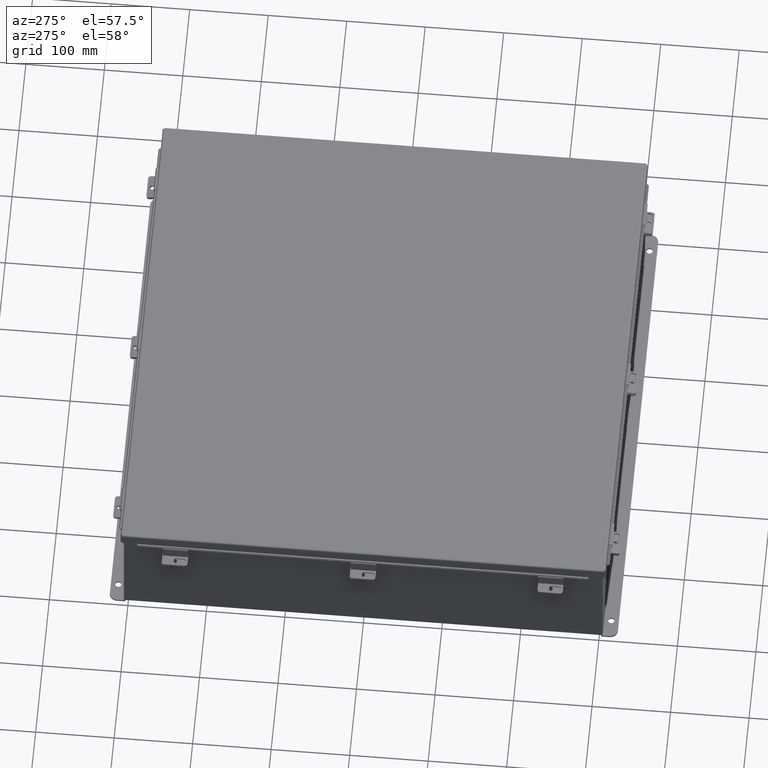
[diagram: clean part render]
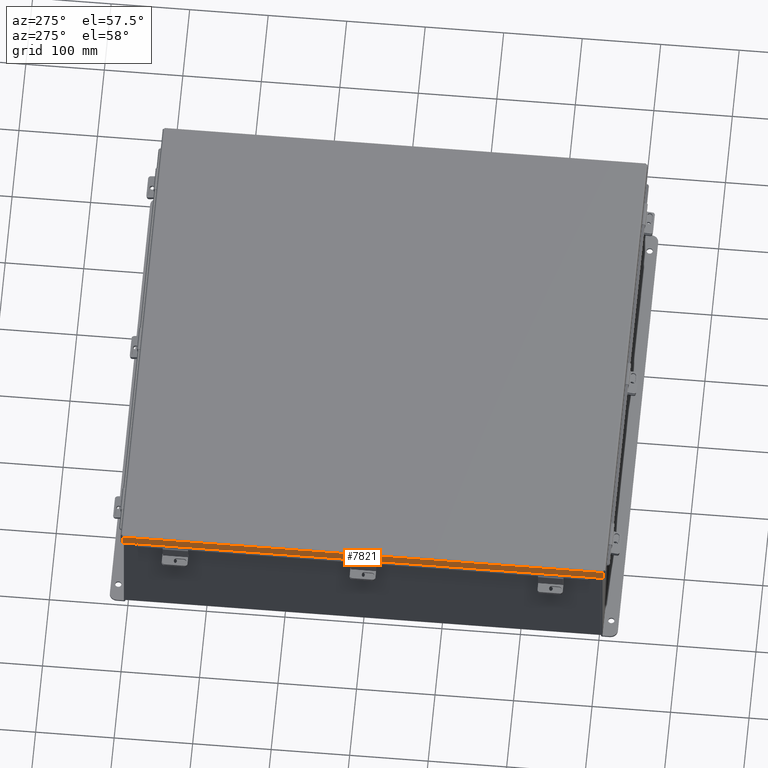
[diagram: same view with one face highlighted and labeled with its STEP entity id]
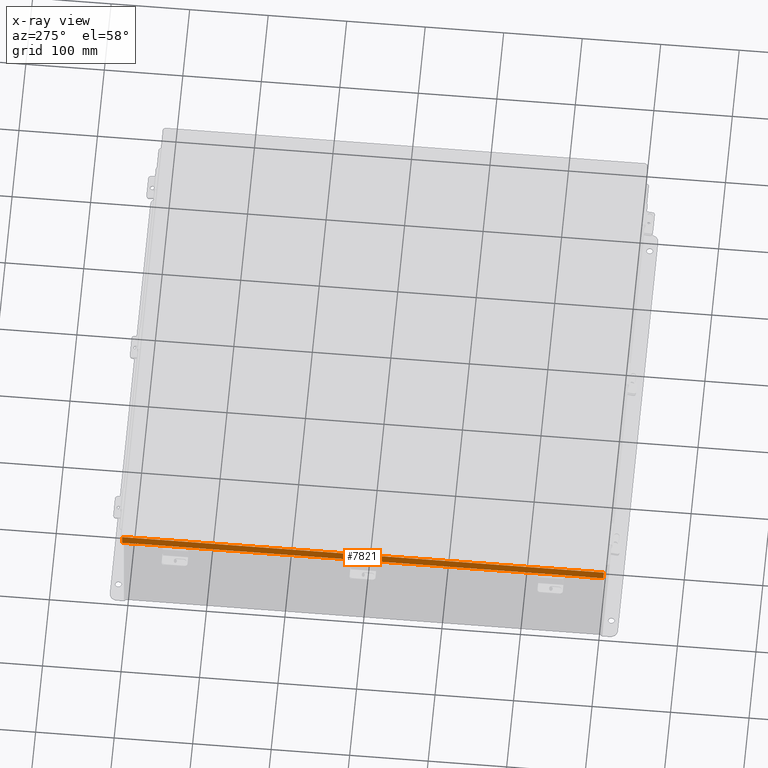
[diagram: x-ray of the same camera — body ghosted, the highlighted face saturated]
A machine part, auxiliary view. The second image highlights one B-rep face of the part: STEP entity #7821.
The next image is the same camera in x-ray: the body ghosted, the highlighted face saturated — about 0% of this face is hidden behind the body in this view.
In plain terms, the highlighted planar face has unit normal (1, -0, 0).
Its self-contained STEP definition (entity closure, byte-faithful):
#314 = CARTESIAN_POINT ( 'NONE',  ( 12.15625000000003900, 12.07447893218813200, -4.917326388595673900E-014 ) ) ;
#351 = VERTEX_POINT ( 'NONE', #9879 ) ;
#353 = CARTESIAN_POINT ( 'NONE',  ( 12.15625000000003700, 11.32447893218812700, 0.5502999999999999000 ) ) ;
#590 = ORIENTED_EDGE ( 'NONE', *, *, #1345, .T. ) ;
#612 = LINE ( 'NONE', #9367, #2507 ) ;
#775 = CARTESIAN_POINT ( 'NONE',  ( 12.15625000000003700, -12.07447893218813200, 0.5502999999999999000 ) ) ;
#974 = CARTESIAN_POINT ( 'NONE',  ( 12.15625000000003200, 11.32447893218813200, 0.5347115427318754900 ) ) ;
#1112 = DIRECTION ( 'NONE',  ( 3.971430846686186800E-015, 1.846427556282924300E-029, 1.000000000000000000 ) ) ;
#1191 = EDGE_CURVE ( 'NONE', #9556, #6609, #5848, .T. ) ;
#1219 = AXIS2_PLACEMENT_3D ( 'NONE', #9155, #4153, #8000 ) ;
#1345 = EDGE_CURVE ( 'NONE', #351, #4157, #7684, .T. ) ;
#1442 = DIRECTION ( 'NONE',  ( -5.607940176096423400E-013, 1.401985044024099800E-013, -1.000000000000000000 ) ) ;
#1681 = CARTESIAN_POINT ( 'NONE',  ( 12.15625000000003900, 4.268512490100411300E-018, 0.5502999999999999000 ) ) ;
#1969 = DIRECTION ( 'NONE',  ( 3.971430846686186800E-015, 1.846427556282924300E-029, 1.000000000000000000 ) ) ;
#1999 = VERTEX_POINT ( 'NONE', #7660 ) ;
#2294 = FACE_OUTER_BOUND ( 'NONE', #2689, .T. ) ;
#2372 = CARTESIAN_POINT ( 'NONE',  ( 12.15625000000003700, -11.32447893218813200, 0.5347115427318754900 ) ) ;
#2507 = VECTOR ( 'NONE', #7855, 39.37007874015748100 ) ;
#2658 = EDGE_CURVE ( 'NONE', #9556, #4677, #4755, .T. ) ;
#2689 = EDGE_LOOP ( 'NONE', ( #3008, #4245, #5902, #4706, #590, #3380, #5132, #6389 ) ) ;
#2975 = CARTESIAN_POINT ( 'NONE',  ( 12.15625000000003900, 4.268512490100411300E-018, 0.5502999999999999000 ) ) ;
#3008 = ORIENTED_EDGE ( 'NONE', *, *, #2658, .F. ) ;
#3191 = VECTOR ( 'NONE', #1442, 39.37007874015748100 ) ;
#3380 = ORIENTED_EDGE ( 'NONE', *, *, #6569, .T. ) ;
#3449 = EDGE_CURVE ( 'NONE', #1999, #6609, #8020, .T. ) ;
#3843 = CARTESIAN_POINT ( 'NONE',  ( 12.15625000000003700, 12.07447893218813200, 0.5502999999999999000 ) ) ;
#4153 = DIRECTION ( 'NONE',  ( -1.000000000000000000, -3.214874041279299500E-030, 3.971430846686186800E-015 ) ) ;
#4157 = VERTEX_POINT ( 'NONE', #3843 ) ;
#4222 = CARTESIAN_POINT ( 'NONE',  ( 12.15625000000003700, -11.32447893218813200, 0.5502999999999999000 ) ) ;
#4237 = LINE ( 'NONE', #8676, #7869 ) ;
#4245 = ORIENTED_EDGE ( 'NONE', *, *, #1191, .T. ) ;
#4420 = VERTEX_POINT ( 'NONE', #353 ) ;
#4608 = VECTOR ( 'NONE', #7381, 39.37007874015748100 ) ;
#4653 = CARTESIAN_POINT ( 'NONE',  ( 12.15625000000003700, 11.32447893218813200, 0.5347115427318754900 ) ) ;
#4677 = VERTEX_POINT ( 'NONE', #2372 ) ;
#4706 = ORIENTED_EDGE ( 'NONE', *, *, #9289, .F. ) ;
#4755 = LINE ( 'NONE', #6996, #3191 ) ;
#5031 = LINE ( 'NONE', #1681, #4608 ) ;
#5119 = VECTOR ( 'NONE', #6275, 39.37007874015748100 ) ;
#5132 = ORIENTED_EDGE ( 'NONE', *, *, #6543, .F. ) ;
#5848 = LINE ( 'NONE', #2975, #5119 ) ;
#5902 = ORIENTED_EDGE ( 'NONE', *, *, #3449, .F. ) ;
#6275 = DIRECTION ( 'NONE',  ( -3.166671605124525800E-030, -1.000000000000000000, -1.853823127269377700E-029 ) ) ;
#6339 = LINE ( 'NONE', #974, #6925 ) ;
#6377 = VERTEX_POINT ( 'NONE', #4653 ) ;
#6389 = ORIENTED_EDGE ( 'NONE', *, *, #10025, .F. ) ;
#6543 = EDGE_CURVE ( 'NONE', #6377, #4420, #6339, .T. ) ;
#6569 = EDGE_CURVE ( 'NONE', #4157, #4420, #5031, .T. ) ;
#6609 = VERTEX_POINT ( 'NONE', #775 ) ;
#6814 = VECTOR ( 'NONE', #1112, 39.37007874015748100 ) ;
#6902 = CARTESIAN_POINT ( 'NONE',  ( 12.15625000000003900, -12.07447893218813200, -1.092739197465705300E-015 ) ) ;
#6925 = VECTOR ( 'NONE', #8407, 39.37007874015748100 ) ;
#6938 = VECTOR ( 'NONE', #1969, 39.37007874015748100 ) ;
#6996 = CARTESIAN_POINT ( 'NONE',  ( 12.15625000000004100, -11.32447893218813200, 0.5502999999999965700 ) ) ;
#7381 = DIRECTION ( 'NONE',  ( -3.166671605124525800E-030, -1.000000000000000000, -1.853823127269377700E-029 ) ) ;
#7660 = CARTESIAN_POINT ( 'NONE',  ( 12.15625000000003900, -12.07447893218813200, 0.01299999999999901400 ) ) ;
#7684 = LINE ( 'NONE', #314, #6814 ) ;
#7821 = ADVANCED_FACE ( 'NONE', ( #2294 ), #8794, .F. ) ;
#7855 = DIRECTION ( 'NONE',  ( 3.166671605124525800E-030, 1.000000000000000000, 1.853823127269377700E-029 ) ) ;
#7869 = VECTOR ( 'NONE', #8849, 39.37007874015748100 ) ;
#8000 = DIRECTION ( 'NONE',  ( 3.971430846686186800E-015, 1.846427556282924000E-029, 1.000000000000000000 ) ) ;
#8020 = LINE ( 'NONE', #6902, #6938 ) ;
#8407 = DIRECTION ( 'NONE',  ( 2.803970088047830000E-013, 1.846427556282924300E-029, 1.000000000000000000 ) ) ;
#8676 = CARTESIAN_POINT ( 'NONE',  ( 12.15625000000003900, -12.15625000000000200, 0.01299999999999901400 ) ) ;
#8794 = PLANE ( 'NONE',  #1219 ) ;
#8849 = DIRECTION ( 'NONE',  ( -3.166671605124525800E-030, -1.000000000000000000, -1.853823127269377700E-029 ) ) ;
#9155 = CARTESIAN_POINT ( 'NONE',  ( 12.15625000000003700, 0.0000000000000000000, -4.808052468849102900E-014 ) ) ;
#9289 = EDGE_CURVE ( 'NONE', #351, #1999, #4237, .T. ) ;
#9367 = CARTESIAN_POINT ( 'NONE',  ( 12.15625000000003200, -11.32447893218813200, 0.5347115427318754900 ) ) ;
#9556 = VERTEX_POINT ( 'NONE', #4222 ) ;
#9879 = CARTESIAN_POINT ( 'NONE',  ( 12.15625000000003900, 12.07447893218813200, 0.01300000000000010700 ) ) ;
#10025 = EDGE_CURVE ( 'NONE', #4677, #6377, #612, .T. ) ;